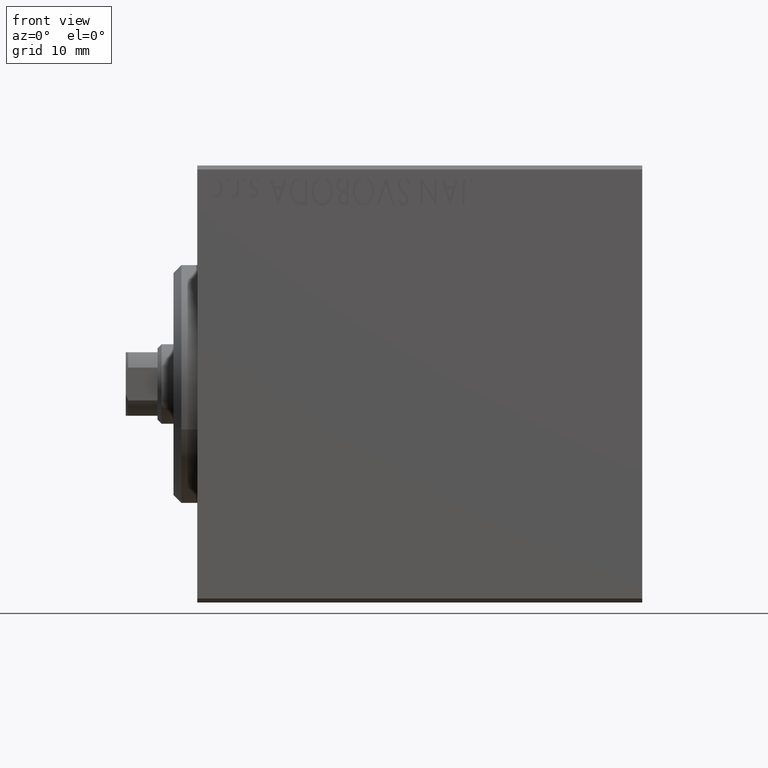
[diagram: clean part render]
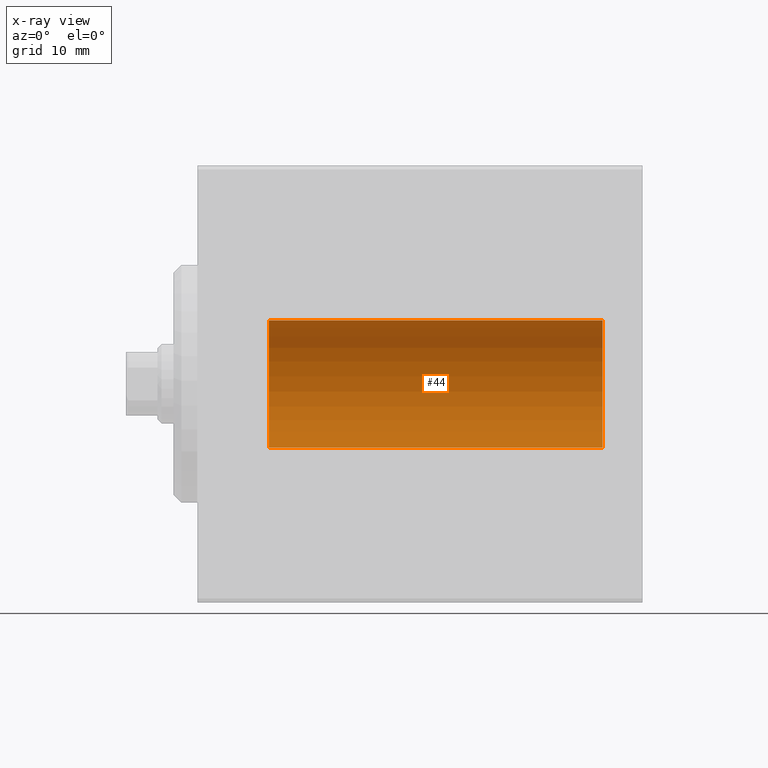
[diagram: x-ray — body ghosted, one internal face saturated and labeled with its STEP entity id]
A machine part, front view, then the same camera in x-ray: the body is ghosted and one INTERNAL B-rep face — a face not visible from any outside direction — is saturated and labeled: STEP entity #44.
In plain terms, the highlighted cylindrical surface (partial cylindrical patch) has radius 8 mm, axis along (-1, -0, -0).
Its self-contained STEP definition (entity closure, byte-faithful):
#44 = ADVANCED_FACE ( 'NONE', ( #9623 ), #16052, .F. ) ;
#55 = ORIENTED_EDGE ( 'NONE', *, *, #11558, .F. ) ;
#920 = EDGE_CURVE ( 'NONE', #9431, #10812, #24298, .T. ) ;
#2980 = CARTESIAN_POINT ( 'NONE',  ( 9.000000000000001776, 0.000000000000000000, 7.999999999999998224 ) ) ;
#3185 = DIRECTION ( 'NONE',  ( -1.000000000000000000, -0.000000000000000000, -0.000000000000000000 ) ) ;
#3638 = EDGE_CURVE ( 'NONE', #10812, #10601, #23929, .T. ) ;
#3736 = CARTESIAN_POINT ( 'NONE',  ( 51.00000000000000000, 9.797174393178823685E-16, -7.999999999999998224 ) ) ;
#3902 = CARTESIAN_POINT ( 'NONE',  ( 51.00000000000000000, 0.000000000000000000, 7.999999999999998224 ) ) ;
#8540 = CARTESIAN_POINT ( 'NONE',  ( 9.000000000000001776, 9.797174393178823685E-16, -7.999999999999998224 ) ) ;
#8712 = ORIENTED_EDGE ( 'NONE', *, *, #3638, .T. ) ;
#9431 = VERTEX_POINT ( 'NONE', #32682 ) ;
#9565 = DIRECTION ( 'NONE',  ( 0.000000000000000000, 0.000000000000000000, 1.000000000000000000 ) ) ;
#9623 = FACE_OUTER_BOUND ( 'NONE', #20380, .T. ) ;
#10601 = VERTEX_POINT ( 'NONE', #8540 ) ;
#10812 = VERTEX_POINT ( 'NONE', #2980 ) ;
#11558 = EDGE_CURVE ( 'NONE', #29594, #10601, #34097, .T. ) ;
#11884 = AXIS2_PLACEMENT_3D ( 'NONE', #27209, #13244, #32985 ) ;
#12213 = CIRCLE ( 'NONE', #22840, 7.999999999999998224 ) ;
#12957 = DIRECTION ( 'NONE',  ( 0.000000000000000000, 0.000000000000000000, 1.000000000000000000 ) ) ;
#13244 = DIRECTION ( 'NONE',  ( -1.000000000000000000, 0.000000000000000000, 0.000000000000000000 ) ) ;
#14016 = ORIENTED_EDGE ( 'NONE', *, *, #920, .T. ) ;
#16052 = CYLINDRICAL_SURFACE ( 'NONE', #35865, 7.999999999999998224 ) ;
#18035 = ORIENTED_EDGE ( 'NONE', *, *, #38425, .F. ) ;
#20380 = EDGE_LOOP ( 'NONE', ( #55, #18035, #14016, #8712 ) ) ;
#20399 = CARTESIAN_POINT ( 'NONE',  ( 51.00000000000000000, 0.000000000000000000, 0.000000000000000000 ) ) ;
#21219 = VECTOR ( 'NONE', #41183, 1000.000000000000000 ) ;
#22840 = AXIS2_PLACEMENT_3D ( 'NONE', #20399, #27491, #9565 ) ;
#23929 = CIRCLE ( 'NONE', #11884, 7.999999999999998224 ) ;
#24298 = LINE ( 'NONE', #3902, #33776 ) ;
#27209 = CARTESIAN_POINT ( 'NONE',  ( 9.000000000000001776, 0.000000000000000000, 0.000000000000000000 ) ) ;
#27491 = DIRECTION ( 'NONE',  ( -1.000000000000000000, 0.000000000000000000, 0.000000000000000000 ) ) ;
#29594 = VERTEX_POINT ( 'NONE', #40460 ) ;
#30938 = DIRECTION ( 'NONE',  ( -1.000000000000000000, -0.000000000000000000, -0.000000000000000000 ) ) ;
#32682 = CARTESIAN_POINT ( 'NONE',  ( 51.00000000000000000, 0.000000000000000000, 7.999999999999998224 ) ) ;
#32985 = DIRECTION ( 'NONE',  ( 0.000000000000000000, 0.000000000000000000, 1.000000000000000000 ) ) ;
#33776 = VECTOR ( 'NONE', #30938, 1000.000000000000000 ) ;
#34097 = LINE ( 'NONE', #3736, #21219 ) ;
#35865 = AXIS2_PLACEMENT_3D ( 'NONE', #36229, #3185, #12957 ) ;
#36229 = CARTESIAN_POINT ( 'NONE',  ( 51.00000000000000000, 0.000000000000000000, 0.000000000000000000 ) ) ;
#38425 = EDGE_CURVE ( 'NONE', #9431, #29594, #12213, .T. ) ;
#40460 = CARTESIAN_POINT ( 'NONE',  ( 51.00000000000000000, 9.797174393178823685E-16, -7.999999999999998224 ) ) ;
#41183 = DIRECTION ( 'NONE',  ( -1.000000000000000000, -0.000000000000000000, -0.000000000000000000 ) ) ;